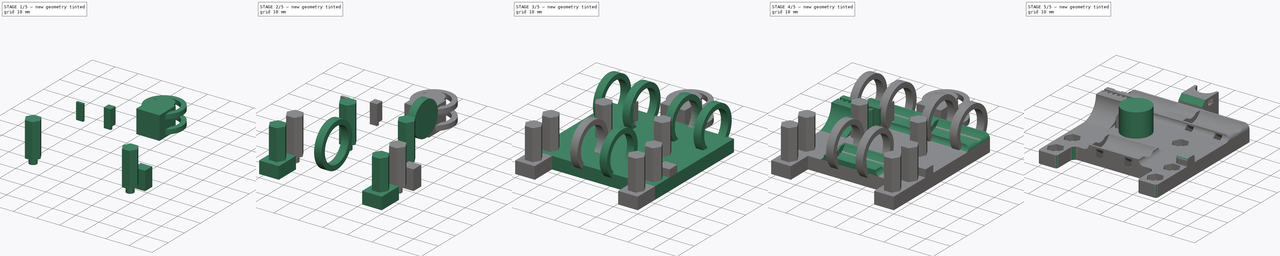
[diagram: build sequence overview — one tinted view per stage of 5, left to right]
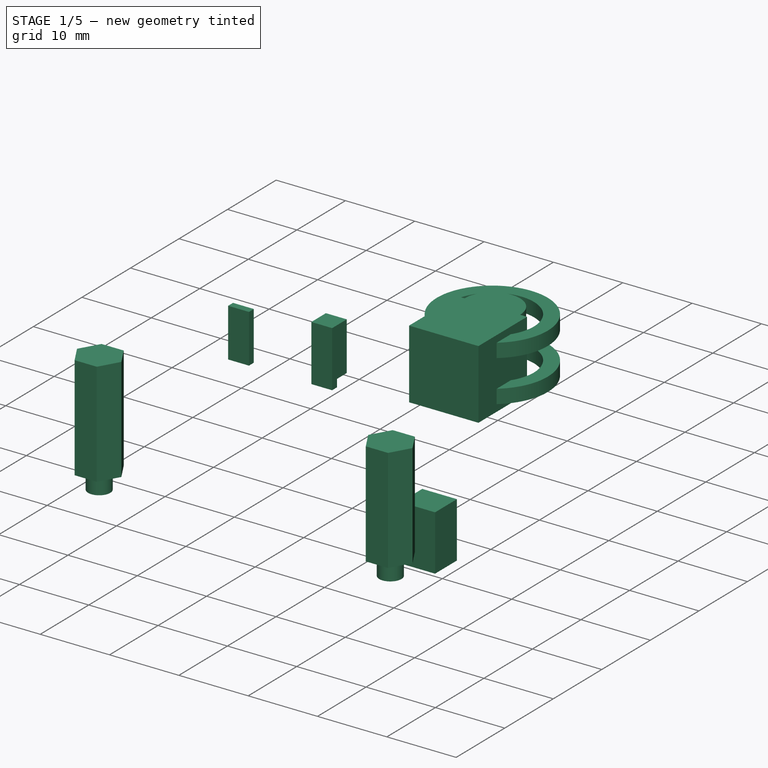
[diagram: stage 1 of 5 — iso view after this stage's code; geometry added in this stage tinted green]
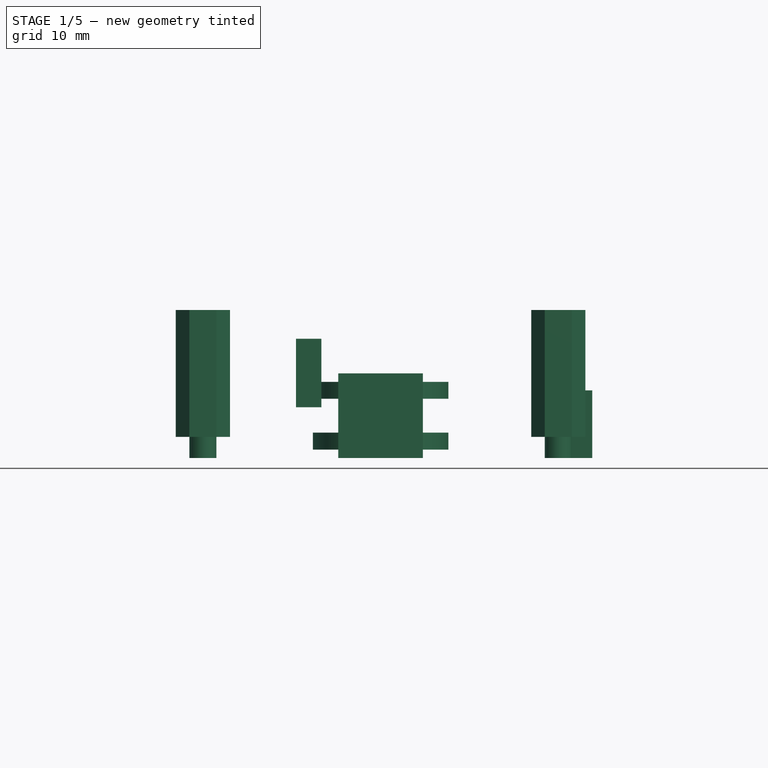
[diagram: stage 1 of 5 — front view after this stage's code; geometry added in this stage tinted green]
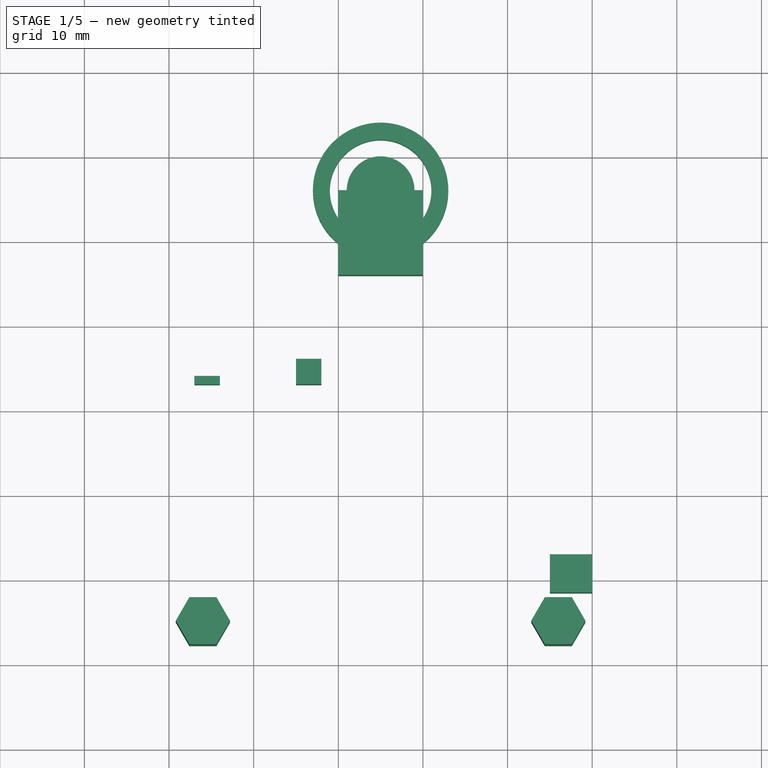
[diagram: stage 1 of 5 — top view after this stage's code; geometry added in this stage tinted green]
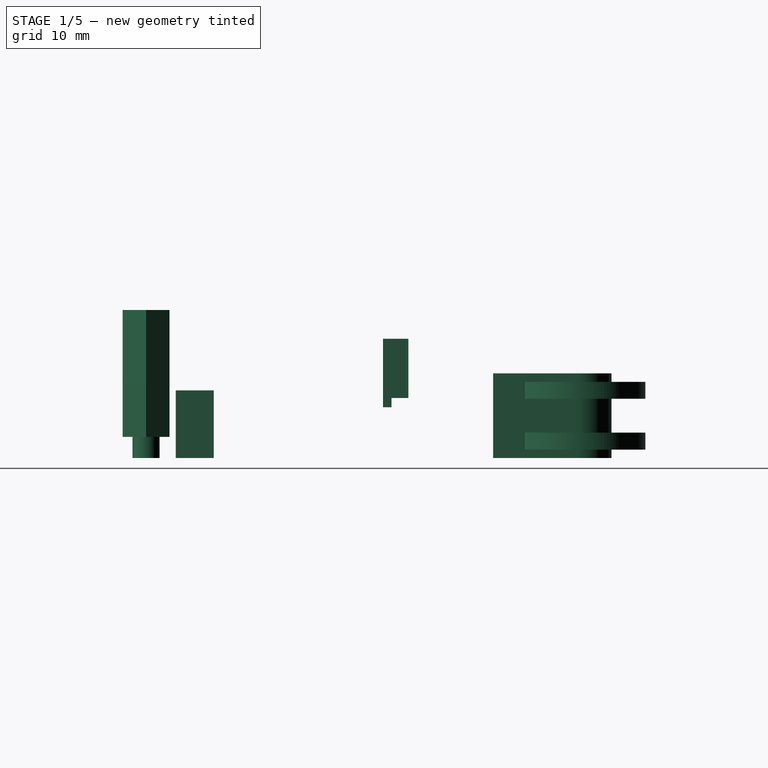
[diagram: stage 1 of 5 — right view after this stage's code; geometry added in this stage tinted green]
FCSTD DOCUMENT  (FreeCAD 0.16R6707 (Git))
Label: CarroX
License: CreativeCommons Attribution-ShareAlike
LicenseURL: http://creativecommons.org/licenses/by-sa/4.0/
objects: Part::Cylinder×27, Part::Cut×17, Part::MultiFuse×11, Part::Box×9, PartDesign::Fillet×6, Part::Prism×6, Sketcher::SketchObject×4, PartDesign::Pad×3, Part::FeaturePython×1, PartDesign::Pocket×1, PartDesign::Chamfer×1
note: 90 computed .brp shape members not serialized (recipe doc carries the construction recipe); baked Part::Feature solids carry a one-line shape summary decoded from their .brp

FEATURE [Part::Cylinder] Cylinder022  label="Cilindro005"
  Angle = 360
  Height = 10
  Placement = pos=(46,5,0) rot=(0,0,1;0rad)
  Radius = 1.6
FEATURE [Part::Cylinder] Cylinder023  label="Cilindro006"
  Angle = 360
  Height = 10
  Placement = pos=(4,5,0) rot=(0,0,1;0rad)
  Radius = 1.6
FEATURE [Part::Prism] Prism004  label="Prisma004"
  Circumradius = 3.2
  Height = 15
  Placement = pos=(46,5,2.5) rot=(0,0,1;0rad)
  Polygon = 6
FEATURE [Part::Prism] Prism005  label="Prisma005"
  Circumradius = 3.2
  Height = 15
  Placement = pos=(4,5,2.5) rot=(0,0,1;0rad)
  Polygon = 6
FEATURE [Part::MultiFuse] Fusion006  label="tornillos002"
  Shapes = -> [Prism005,Prism004,Cylinder023,Cylinder022]
FEATURE [Part::Box] Box004  label="Cubo004"
  Height = 7
  Length = 3
  Placement = pos=(15,33,7.1) rot=(0,0,1;0rad)
  Width = 3
FEATURE [Part::Box] Box005  label="Cubo005"
  Height = 7
  Length = 3
  Placement = pos=(15,33,6) rot=(0,0,1;0rad)
  Width = 1
FEATURE [Part::Box] Box006  label="Cubo006"
  Height = 7
  Length = 3
  Placement = pos=(3,33,6) rot=(0,0,1;0rad)
  Width = 1
FEATURE [Part::Box] Box007  label="Cubo007"
  Height = 10
  Length = 10
  Placement = pos=(20,46,0) rot=(0,0,1;0rad)
  Width = 10
FEATURE [Part::Cylinder] Cylinder024  label="Cilindro007"
  Angle = 360
  Height = 10
  Placement = pos=(25,56,0) rot=(0,0,1;0rad)
  Radius = 4
FEATURE [Part::Cylinder] Cylinder025  label="Cilindro008"
  Angle = 360
  Height = 2
  Placement = pos=(25,56,0) rot=(0,0,1;0rad)
  Radius = 8
FEATURE [Part::Cylinder] Cylinder026  label="Cilindro009"
  Angle = 360
  Height = 2
  Placement = pos=(25,56,0) rot=(0,0,1;0rad)
  Radius = 6
FEATURE [Part::Cut] Cut014  label="brida006"
  Base = -> Cylinder025
  Placement = pos=(0,0,1) rot=(0,0,1;0rad)
  Tool = -> Cylinder026
FEATURE [Part::Cut] Cut015  label="brida007"
  Base = -> Cylinder025
  Placement = pos=(0,0,7) rot=(0,0,1;0rad)
  Tool = -> Cylinder026
FEATURE [Part::MultiFuse] Fusion009  label="cables_cabeza"
  Shapes = -> [Cut015,Cut014,Cylinder024]
FEATURE [Part::Box] Box008  label="taco_endstop"
  Height = 8
  Length = 5
  Placement = pos=(45,8.5,0) rot=(0,0,1;0rad)
  Width = 4.5
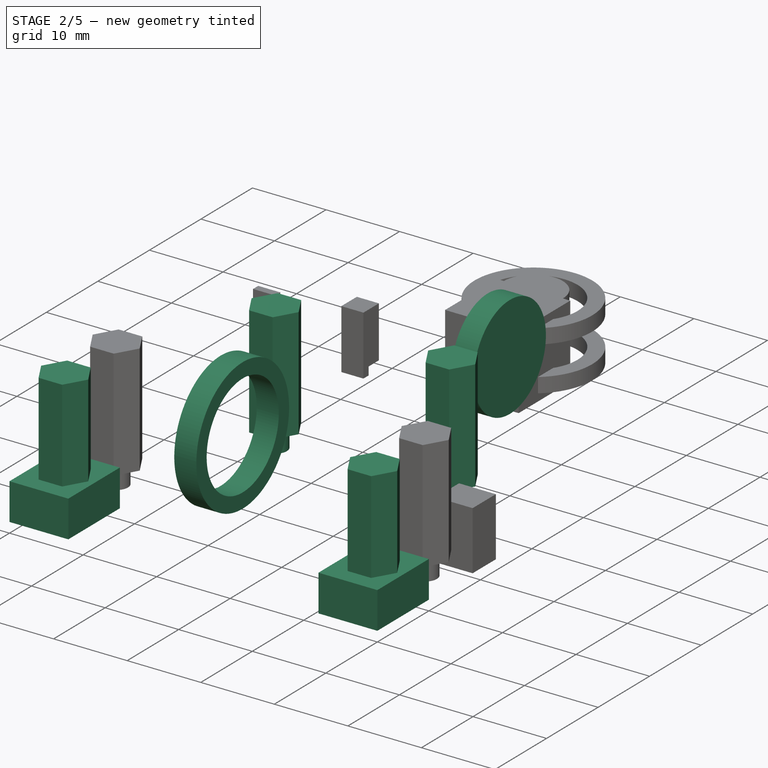
[diagram: stage 2 of 5 — iso view after this stage's code; geometry added in this stage tinted green]
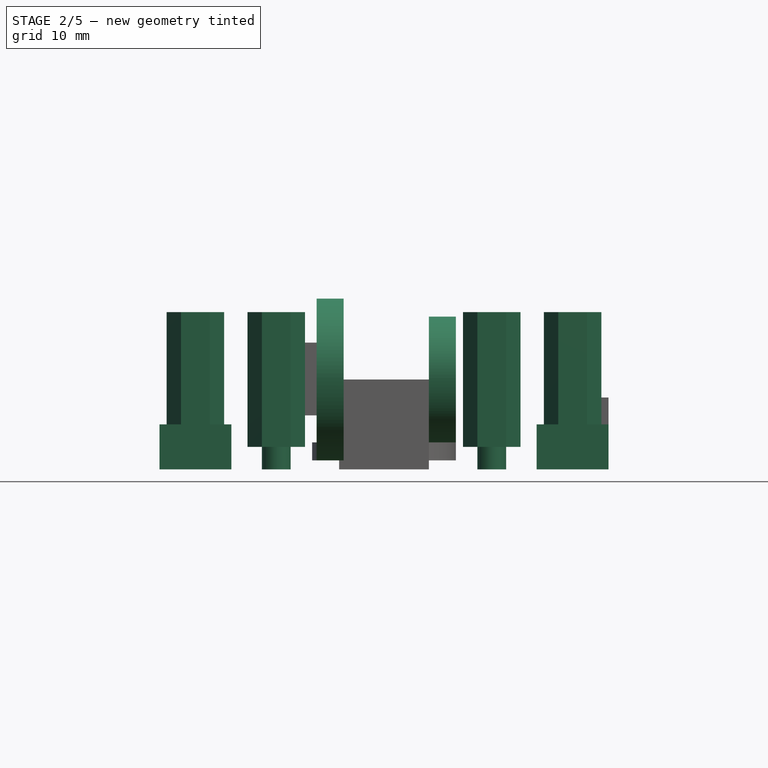
[diagram: stage 2 of 5 — front view after this stage's code; geometry added in this stage tinted green]
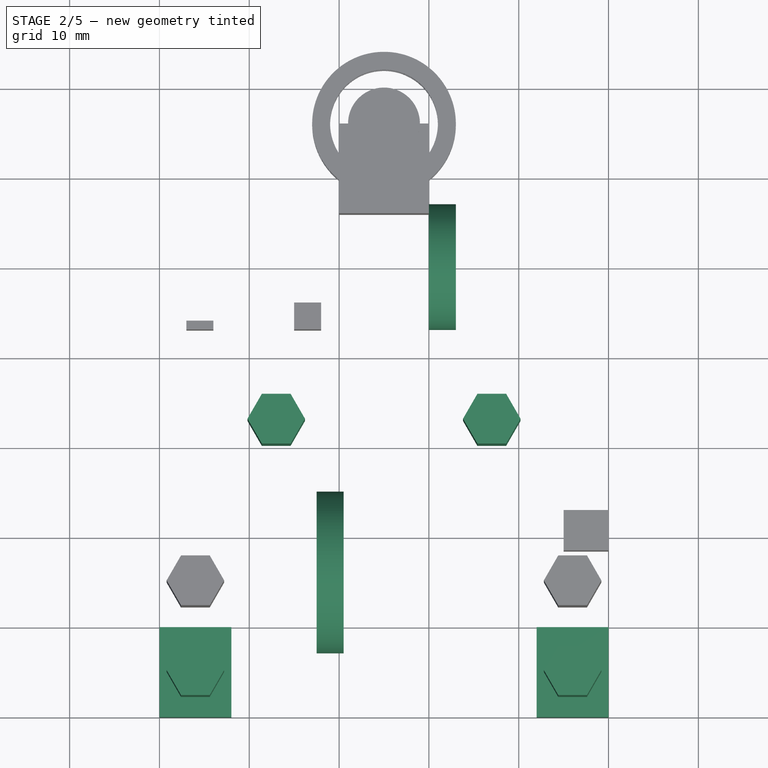
[diagram: stage 2 of 5 — top view after this stage's code; geometry added in this stage tinted green]
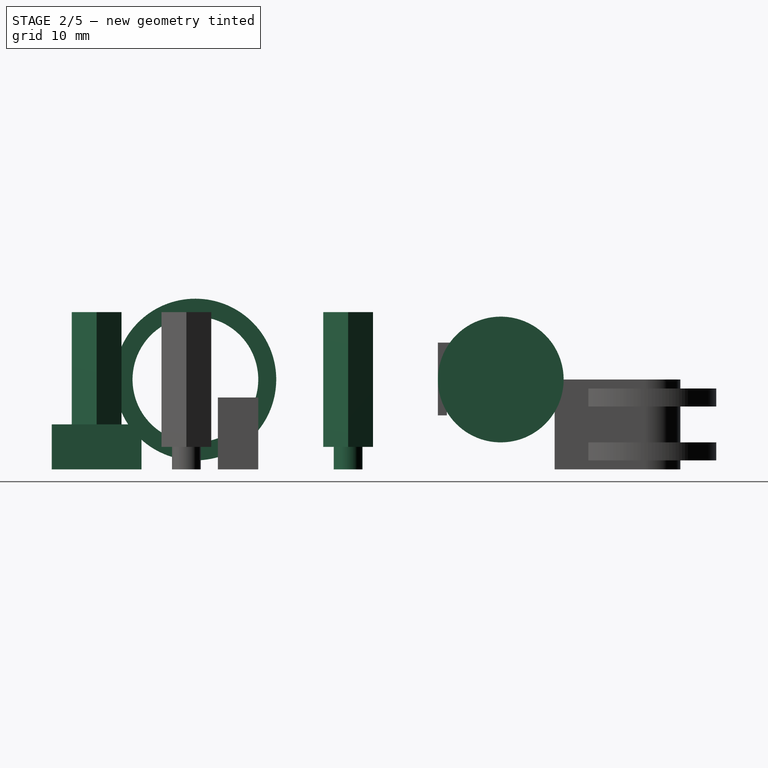
[diagram: stage 2 of 5 — right view after this stage's code; geometry added in this stage tinted green]
FEATURE [Part::Cylinder] Cylinder015  label="resta_brida004"
  Angle = 360
  Height = 3
  Placement = pos=(30,40,10) rot=(0,1,0;1.5708rad)
  Radius = 7
FEATURE [Part::Cylinder] Cylinder016  label="base_brida005"
  Angle = 360
  Height = 3
  Placement = pos=(30,40,10) rot=(0,1,0;1.5708rad)
  Radius = 9
FEATURE [Part::Cylinder] Cylinder017  label="resta_brida005"
  Angle = 360
  Height = 3
  Placement = pos=(30,40,10) rot=(0,1,0;1.5708rad)
  Radius = 7
FEATURE [Part::Cut] Cut007  label="brida005"
  Base = -> Cylinder016
  Placement = pos=(-12.5,-34,0) rot=(0,0,1;0rad)
  Tool = -> Cylinder017
FEATURE [Part::Cylinder] Cylinder018  label="Cilindro001"
  Angle = 360
  Height = 10
  Placement = pos=(13,23,0) rot=(0,0,1;0rad)
  Radius = 1.6
FEATURE [Part::Cylinder] Cylinder019  label="Cilindro002"
  Angle = 360
  Height = 10
  Placement = pos=(37,23,0) rot=(0,0,1;0rad)
  Radius = 1.6
FEATURE [Part::Prism] Prism  label="Prisma"
  Circumradius = 3.2
  Height = 15
  Placement = pos=(13,23,2.5) rot=(0,0,1;0rad)
  Polygon = 6
FEATURE [Part::Prism] Prism001  label="Prisma001"
  Circumradius = 3.2
  Height = 15
  Placement = pos=(37,23,2.5) rot=(0,0,1;0rad)
  Polygon = 6
FEATURE [Part::MultiFuse] Fusion003  label="tornillos"
  Shapes = -> [Prism001,Prism,Cylinder019,Cylinder018]
FEATURE [Part::Box] Box002  label="Cubo002"
  Height = 5
  Length = 8
  Placement = pos=(0,-10,0) rot=(0,0,1;0rad)
  Width = 10
FEATURE [Part::Box] Box003  label="Cubo003"
  Height = 5
  Length = 8
  Placement = pos=(42,-10,0) rot=(0,0,1;0rad)
  Width = 10
FEATURE [Part::Cylinder] Cylinder020  label="Cilindro003"
  Angle = 360
  Height = 10
  Placement = pos=(46,-5,0) rot=(0,0,1;0rad)
  Radius = 1.6
FEATURE [Part::Cylinder] Cylinder021  label="Cilindro004"
  Angle = 360
  Height = 10
  Placement = pos=(4,-5,0) rot=(0,0,1;0rad)
  Radius = 1.6
FEATURE [Part::Prism] Prism002  label="Prisma002"
  Circumradius = 3.2
  Height = 15
  Placement = pos=(46,-5,2.5) rot=(0,0,1;0rad)
  Polygon = 6
FEATURE [Part::Prism] Prism003  label="Prisma003"
  Circumradius = 3.2
  Height = 15
  Placement = pos=(4,-5,2.5) rot=(0,0,1;0rad)
  Polygon = 6
FEATURE [Part::MultiFuse] Fusion005  label="tornillos001"
  Shapes = -> [Prism003,Prism002,Cylinder021,Cylinder020]
FEATURE [Part::MultiFuse] Fusion007  label="tornillos_ventiladores"
  Shapes = -> [Fusion005,Fusion006]
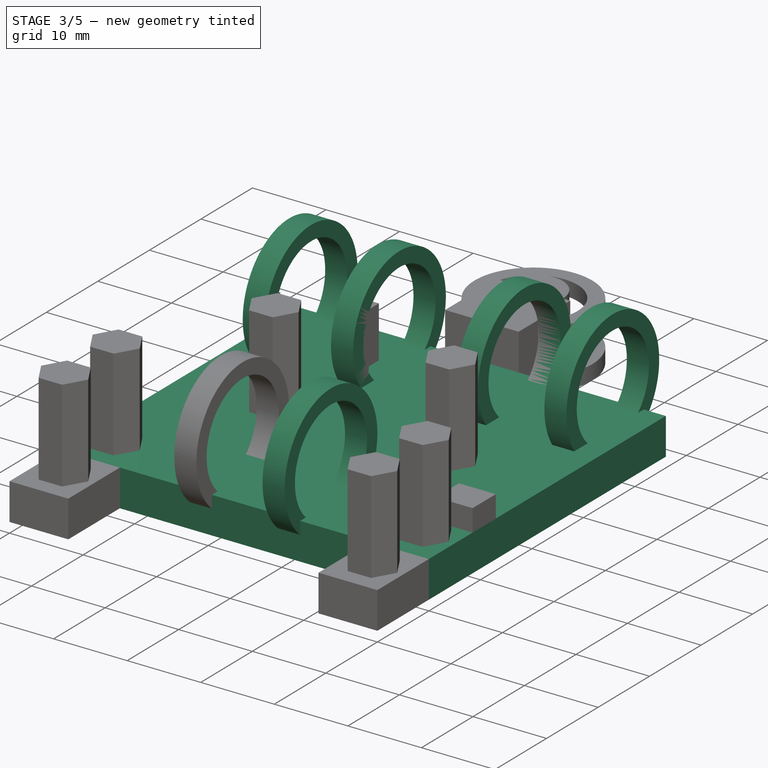
[diagram: stage 3 of 5 — iso view after this stage's code; geometry added in this stage tinted green]
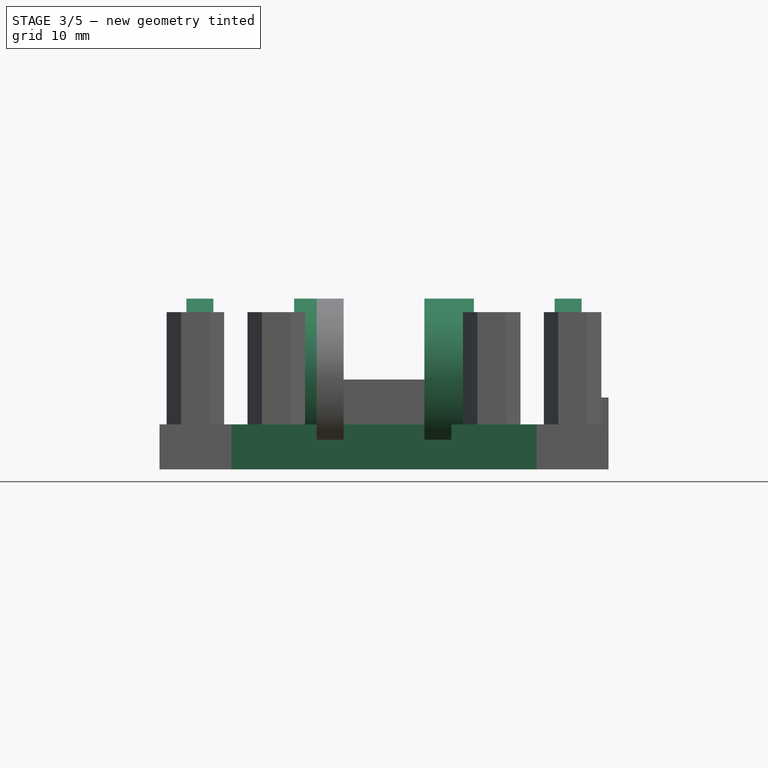
[diagram: stage 3 of 5 — front view after this stage's code; geometry added in this stage tinted green]
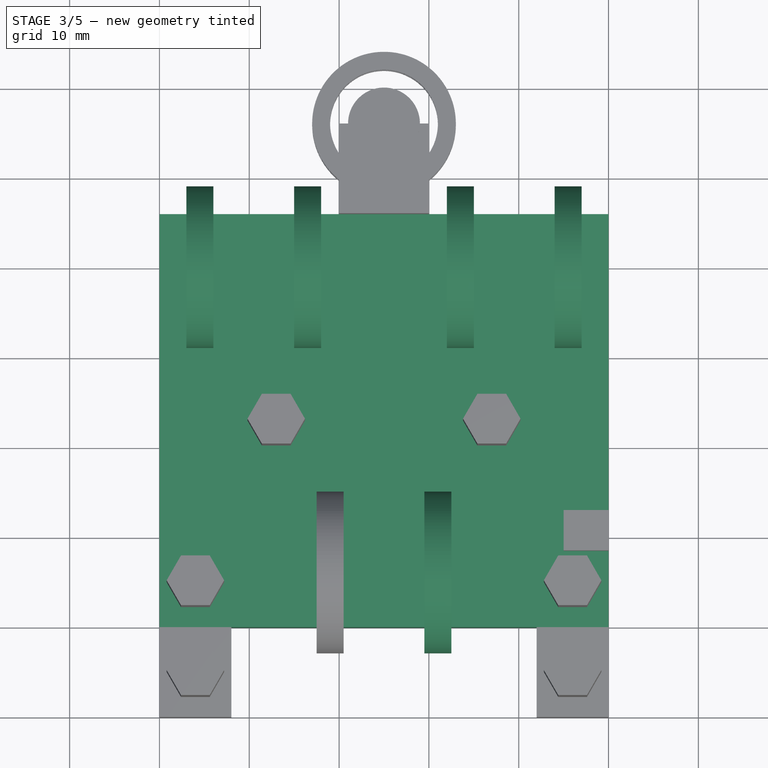
[diagram: stage 3 of 5 — top view after this stage's code; geometry added in this stage tinted green]
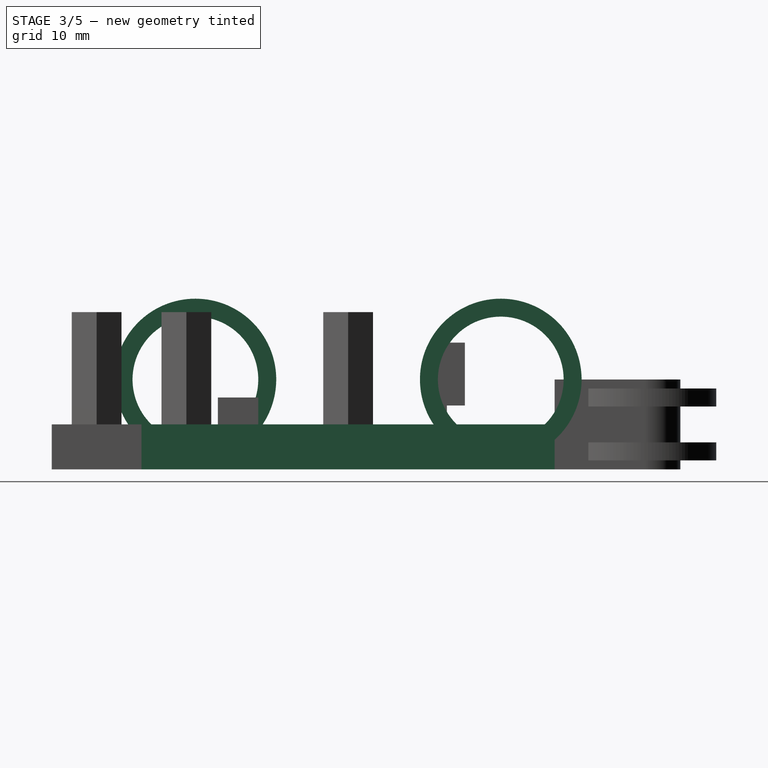
[diagram: stage 3 of 5 — right view after this stage's code; geometry added in this stage tinted green]
FEATURE [Part::Box] Box  label="Cubo"
  Height = 5
  Length = 50
  Width = 46
FEATURE [Part::Cylinder] Cylinder006  label="base_brida"
  Angle = 360
  Height = 3
  Placement = pos=(30,40,10) rot=(0,1,0;1.5708rad)
  Radius = 9
FEATURE [Part::Cylinder] Cylinder007  label="resta_brida"
  Angle = 360
  Height = 3
  Placement = pos=(30,40,10) rot=(0,1,0;1.5708rad)
  Radius = 7
FEATURE [Part::Cut] Cut002  label="brida"
  Base = -> Cylinder006
  Placement = pos=(2,0,0) rot=(0,0,1;0rad)
  Tool = -> Cylinder007
FEATURE [Part::Cylinder] Cylinder008  label="base_brida001"
  Angle = 360
  Height = 3
  Placement = pos=(30,40,10) rot=(0,1,0;1.5708rad)
  Radius = 9
FEATURE [Part::Cylinder] Cylinder009  label="resta_brida001"
  Angle = 360
  Height = 3
  Placement = pos=(30,40,10) rot=(0,1,0;1.5708rad)
  Radius = 7
FEATURE [Part::Cut] Cut003  label="brida001"
  Base = -> Cylinder008
  Placement = pos=(14,0,0) rot=(0,0,1;0rad)
  Tool = -> Cylinder009
FEATURE [Part::Cylinder] Cylinder010  label="base_brida002"
  Angle = 360
  Height = 3
  Placement = pos=(30,40,10) rot=(0,1,0;1.5708rad)
  Radius = 9
FEATURE [Part::Cylinder] Cylinder011  label="resta_brida002"
  Angle = 360
  Height = 3
  Placement = pos=(30,40,10) rot=(0,1,0;1.5708rad)
  Radius = 7
FEATURE [Part::Cut] Cut004  label="brida002"
  Base = -> Cylinder010
  Placement = pos=(-27,0,0) rot=(0,0,1;0rad)
  Tool = -> Cylinder011
FEATURE [Part::Cylinder] Cylinder012  label="base_brida003"
  Angle = 360
  Height = 3
  Placement = pos=(30,40,10) rot=(0,1,0;1.5708rad)
  Radius = 9
FEATURE [Part::Cylinder] Cylinder013  label="resta_brida003"
  Angle = 360
  Height = 3
  Placement = pos=(30,40,10) rot=(0,1,0;1.5708rad)
  Radius = 7
FEATURE [Part::Cut] Cut005  label="brida003"
  Base = -> Cylinder012
  Placement = pos=(-0.5,-34,0) rot=(0,0,1;0rad)
  Tool = -> Cylinder013
FEATURE [Part::Cylinder] Cylinder014  label="base_brida004"
  Angle = 360
  Height = 3
  Placement = pos=(30,40,10) rot=(0,1,0;1.5708rad)
  Radius = 9
FEATURE [Part::Cut] Cut006  label="brida004"
  Base = -> Cylinder014
  Placement = pos=(-15,0,0) rot=(0,0,1;0rad)
  Tool = -> Cylinder015
FEATURE [Part::MultiFuse] Fusion002
  Shapes = -> [Cut007,Cut006,Cut005,Cut004,Cut003,Cut002]
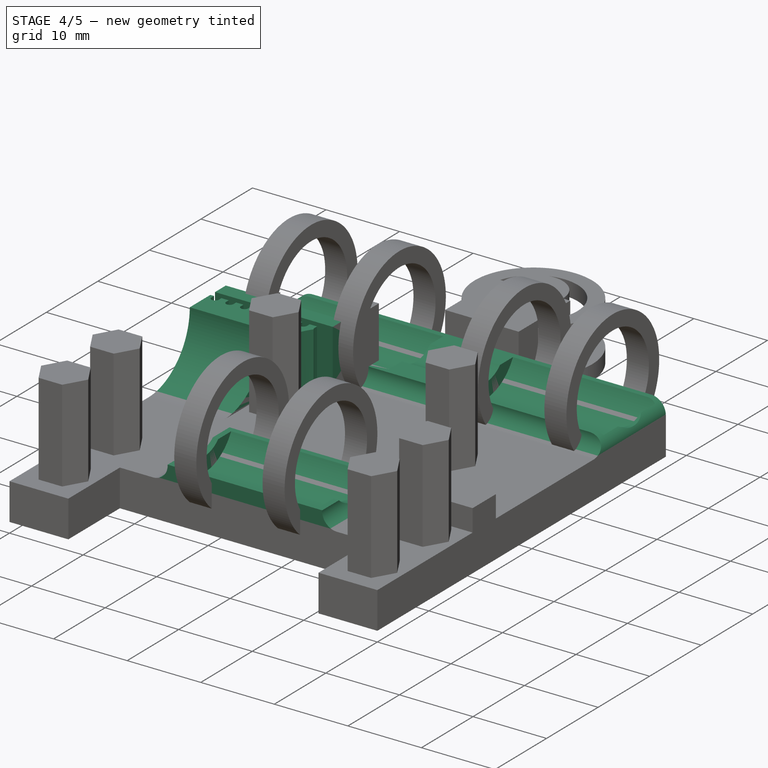
[diagram: stage 4 of 5 — iso view after this stage's code; geometry added in this stage tinted green]
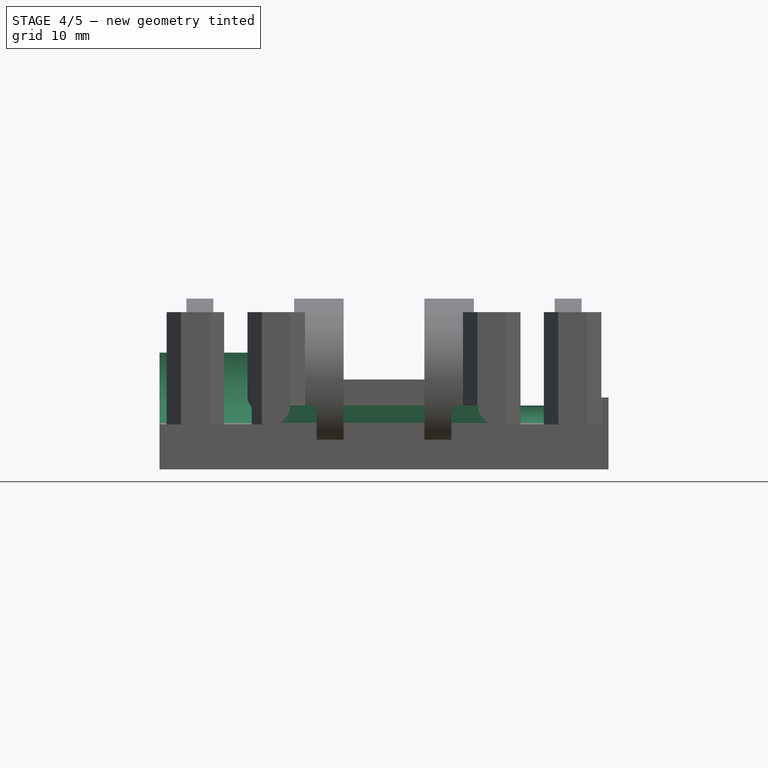
[diagram: stage 4 of 5 — front view after this stage's code; geometry added in this stage tinted green]
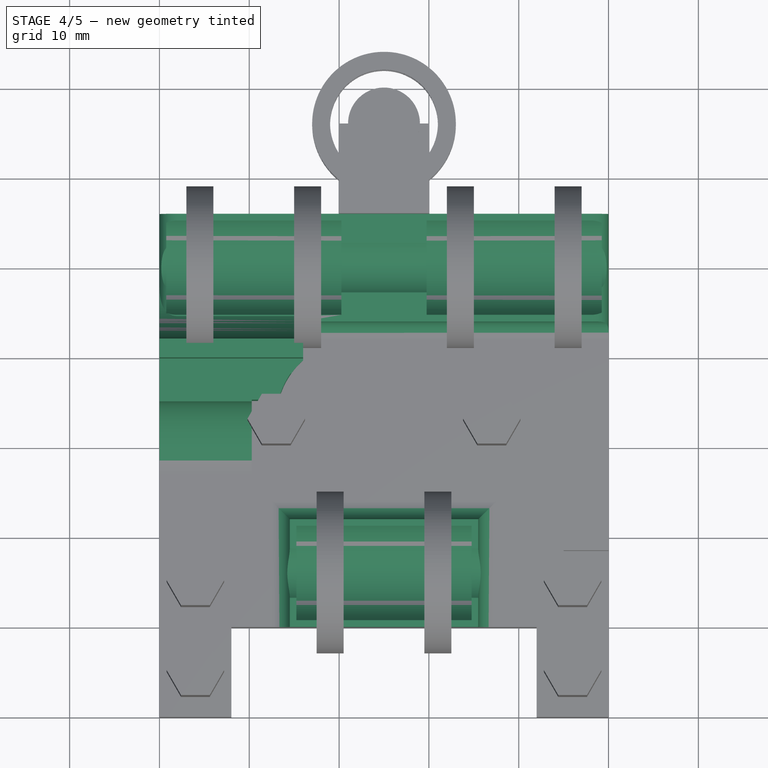
[diagram: stage 4 of 5 — top view after this stage's code; geometry added in this stage tinted green]
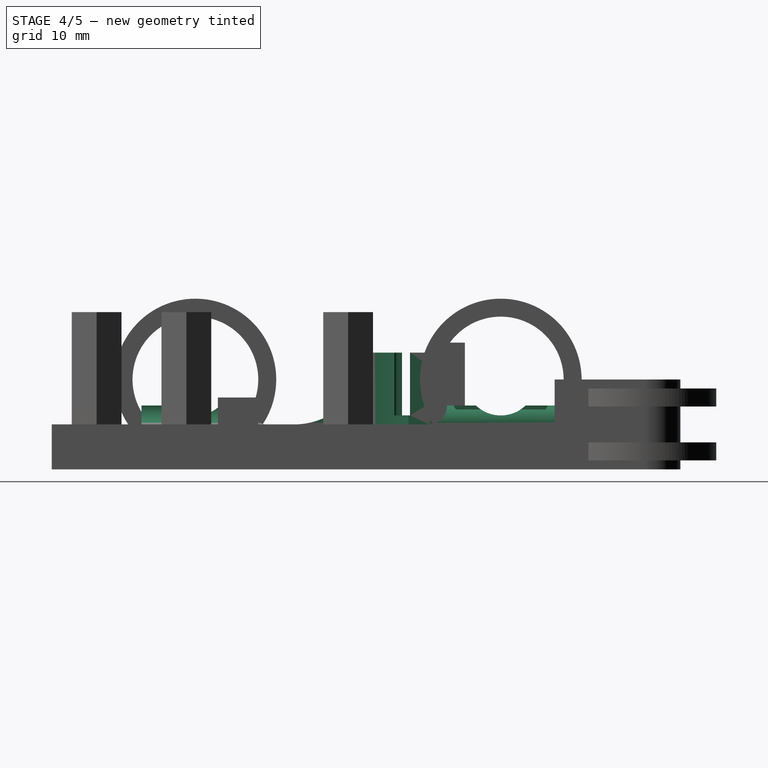
[diagram: stage 4 of 5 — right view after this stage's code; geometry added in this stage tinted green]
FEATURE [Part::Cylinder] Cylinder  label="rodamiento_bajo"
  Angle = 360
  Height = 19.5
  Placement = pos=(15.25,6,10) rot=(0,1,0;1.5708rad)
  Radius = 6
FEATURE [Part::Cylinder] Cylinder001  label="rodamiento_alto1"
  Angle = 360
  Height = 19.5
  Placement = pos=(0.75,40,10) rot=(0,1,0;1.5708rad)
  Radius = 6
FEATURE [Part::Cylinder] Cylinder002  label="rodamiento_alto002"
  Angle = 360
  Height = 19.5
  Placement = pos=(29.75,40,10) rot=(0,1,0;1.5708rad)
  Radius = 6
FEATURE [Sketcher::SketchObject] Sketch
  ExternalGeometry = -> [Box]
  Placement = pos=(0,0,5) rot=(0,0,1;0rad)
  Support = -> Box [Face6]
  sketch-geometry (8):
    g0: LineSegment StartX=0 StartY=46 StartZ=0 EndX=50 EndY=46 EndZ=0
    g1: LineSegment StartX=50 StartY=46 StartZ=0 EndX=50 EndY=34 EndZ=0
    g2: LineSegment StartX=50 StartY=34 StartZ=0 EndX=0 EndY=34 EndZ=0
    g3: LineSegment StartX=0 StartY=34 StartZ=0 EndX=0 EndY=46 EndZ=0
    g4: LineSegment StartX=14.5 StartY=0 StartZ=0 EndX=35.5 EndY=0 EndZ=0
    g5: LineSegment StartX=35.5 StartY=0 StartZ=0 EndX=35.5 EndY=12 EndZ=0
    g6: LineSegment StartX=35.5 StartY=12 StartZ=0 EndX=14.5 EndY=12 EndZ=0
    g7: LineSegment StartX=14.5 StartY=12 StartZ=0 EndX=14.5 EndY=0 EndZ=0
  constraints (23):
    c: Coincident(g0,g1)
    c: Coincident(g1,g2)
    c: Coincident(g2,g3)
    c: Coincident(g3,g0)
    c: Horizontal(g0)
    c: Horizontal(g2)
    c: Vertical(g1)
    c: Vertical(g3)
    c: Coincident(g0,g-3)
    c: Coincident(g0,g-3)
    c: Coincident(g4,g5)
    c: Coincident(g5,g6)
    c: Coincident(g6,g7)
    c: Coincident(g7,g4)
    c: Horizontal(g4)
    c: Horizontal(g6)
    c: Vertical(g5)
    c: Vertical(g7)
    c: PointOnObject(g4,g-1)
    c: DistanceX(g4) = 21
    c: DistanceX(g-1,g4) = 14.5
    c: Equal(g7,g3)
    c: DistanceY(g7) = -12
FEATURE [PartDesign::Pad] Pad
  Length = 2.1
  Length2 = 100
  Sketch = -> Sketch
  Type = 0
FEATURE [PartDesign::Fillet] Fillet
  Base = -> Pad [Edge5,Edge2,Edge7,Edge6]
  Radius = 2
FEATURE [Part::Cylinder] Cylinder003  label="barra_baja"
  Angle = 360
  Height = 70
  Placement = pos=(-10,6,10) rot=(0,1,0;1.5708rad)
  Radius = 4
FEATURE [Part::Cylinder] Cylinder004  label="barra_baja001"
  Angle = 360
  Height = 70
  Placement = pos=(-10,40,10) rot=(0,1,0;1.5708rad)
  Radius = 4
FEATURE [PartDesign::Fillet] Fillet001
  Base = -> Fillet [Edge26,Edge13]
  Radius = 2
FEATURE [Part::MultiFuse] Fusion  label="barras&rodamientos"
  Shapes = -> [Cylinder004,Cylinder003,Cylinder002,Cylinder001,Cylinder]
FEATURE [Sketcher::SketchObject] Sketch001
  ExternalGeometry = -> [Fillet001]
  Placement = pos=(0,0,0) rot=(0.57735,-0.57735,-0.57735;2.0944rad)
  Support = -> Fillet001 [Face1]
  sketch-geometry (4):
    g0: ArcOfCircle CenterX=-17 CenterY=13 CenterZ=0 NormalX=0 NormalY=0 NormalZ=1 Radius=8 StartAngle=3.14159 EndAngle=4.71239
    g1: ArcOfCircle CenterX=-40 CenterY=13 CenterZ=0 NormalX=0 NormalY=0 NormalZ=1 Radius=8 StartAngle=4.71239 EndAngle=6.28319
    g2: LineSegment StartX=-32 StartY=13 StartZ=0 EndX=-25 EndY=13 EndZ=0
    g3: LineSegment StartX=-40 StartY=5 StartZ=0 EndX=-17 EndY=5 EndZ=0
  constraints (14):
    c: PointOnObject(g0,g-3)
    c: PointOnObject(g1,g-3)
    c: Tangent(g1,g-3) = 1.5708
    c: Tangent(g0,g-3)
    c: Coincident(g2,g1)
    c: Horizontal(g2)
    c: Coincident(g0,g2)
    c: DistanceY(g-3,g1) = 8
    c: Perpendicular(g0,g2)
    c: Perpendicular(g1,g2)
    c: DistanceX(g-1,g1) = -40
    c: DistanceX(g0,g-3) = 25
    c: Coincident(g3,g1)
    c: Coincident(g3,g0)
FEATURE [PartDesign::Pad] Pad001
  Length = 16
  Length2 = 100
  Reversed = true
  Sketch = -> Sketch001
  Type = 0
FEATURE [Sketcher::SketchObject] Sketch002
  Placement = pos=(0,0,6) rot=(0,0,1;0rad)
  sketch-geometry (4):
    g0: LineSegment StartX=2.9e-11 StartY=29 StartZ=0 EndX=2.9e-11 EndY=28.5 EndZ=0
    g1: LineSegment StartX=1 StartY=29 StartZ=0 EndX=1 EndY=28.5 EndZ=0
    g2: LineSegment StartX=2.9e-11 StartY=29 StartZ=0 EndX=1 EndY=29 EndZ=0
    g3: ArcOfCircle CenterX=0.5 CenterY=28.5 CenterZ=0 NormalX=0 NormalY=0 NormalZ=1 Radius=0.5 StartAngle=3.14158 EndAngle=6.2832
  constraints (13):
    c: Vertical(g0)
    c: Vertical(g1)
    c: Coincident(g2,g0)
    c: Coincident(g2,g1)
    c: Horizontal(g2)
    c: Coincident(g3,g0)
    c: Coincident(g3,g1)
    c: Equal(g0,g1)
    c: Radius(g3) = 0.5
    c: DistanceY(g0) = -0.5
    c: DistanceX(g2) = 1
    c: DistanceY(g-1,g0) = 29
    c: PointOnObject(g0,g-2)
FEATURE [PartDesign::Pad] Pad002
  Length = 10
  Length2 = 100
  Placement = pos=(0,0,6) rot=(0,0,1;0rad)
  Sketch = -> Sketch002
  Type = 0
FEATURE [Part::FeaturePython] Array  # Draft array (typed FeaturePython)
  Angle = 360
  ArrayType = 0
  Axis = (0,0,1)
  Base = -> Pad002
  Center = (0,0,0)
  Fuse = false
  IntervalAxis = (0,0,0)
  IntervalX = (2,0,0)
  IntervalY = (0,1,0)
  IntervalZ = (0,0,0)
  NumberPolar = 1
  NumberX = 8
  NumberY = 1
  NumberZ = 1
  Placement = pos=(0.5,0,0) rot=(0,0,1;0rad)
FEATURE [Part::Box] Box001  label="Cubo001"
  Height = 10
  Length = 20
  Placement = pos=(-1,29,6) rot=(0,0,1;0rad)
  Width = 0.9
FEATURE [Part::MultiFuse] Fusion001  label="correa"
  Shapes = -> [Array,Box001]
FEATURE [Part::Cut] Cut
  Base = -> Pad001
  Tool = -> Fusion
FEATURE [Part::Cut] Cut001
  Base = -> Cut
  Tool = -> Fusion001
FEATURE [Sketcher::SketchObject] Sketch003
  Placement = pos=(0,0,13) rot=(0,0,1;0rad)
  Support = -> Cut001 [Face6]
  sketch-geometry (5):
    g0: ArcOfCircle CenterX=22 CenterY=23 CenterZ=0 NormalX=0 NormalY=0 NormalZ=1 Radius=9 StartAngle=1.99803 EndAngle=2.89567
    g1: LineSegment StartX=10.2708 StartY=16.191 StartZ=0 EndX=18.2708 EndY=16.191 EndZ=0
    g2: LineSegment StartX=18.2708 StartY=16.191 StartZ=0 EndX=18.2708 EndY=31.191 EndZ=0
    g3: LineSegment StartX=10.2708 StartY=16.191 StartZ=0 EndX=10.2708 EndY=25.191 EndZ=0
    g4: LineSegment StartX=13.2708 StartY=25.191 StartZ=0 EndX=10.2708 EndY=25.191 EndZ=0
  constraints (16):
    c: Horizontal(g1)
    c: Coincident(g1,g2)
    c: Coincident(g2,g0)
    c: Vertical(g2)
    c: Radius(g0) = 9
    c: DistanceX(g-1,g0) = 22
    c: DistanceY(g-1,g0) = 23
    c: DistanceX(g1) = 8
    c: Coincident(g3,g1)
    c: Vertical(g3)
    c: Coincident(g4,g0)
    c: Coincident(g4,g3)
    c: Horizontal(g4)
    c: DistanceX(g4) = -3
    c: DistanceY(g3) = 9
    c: DistanceY(g2) = 15
FEATURE [PartDesign::Pocket] Pocket
  Length = 8
  Sketch = -> Sketch003
  Type = 0
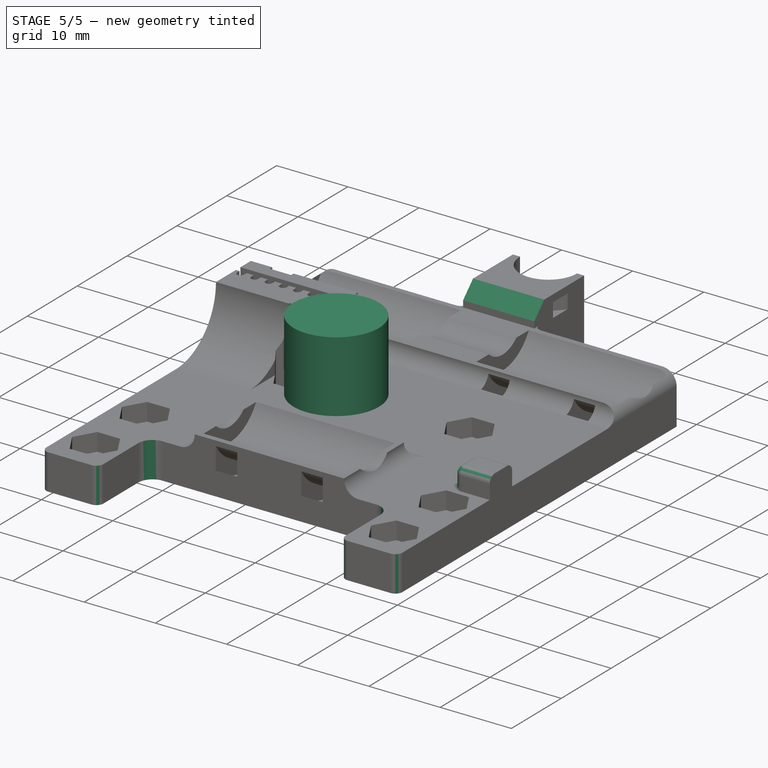
[diagram: stage 5 of 5 — iso view after this stage's code; geometry added in this stage tinted green]
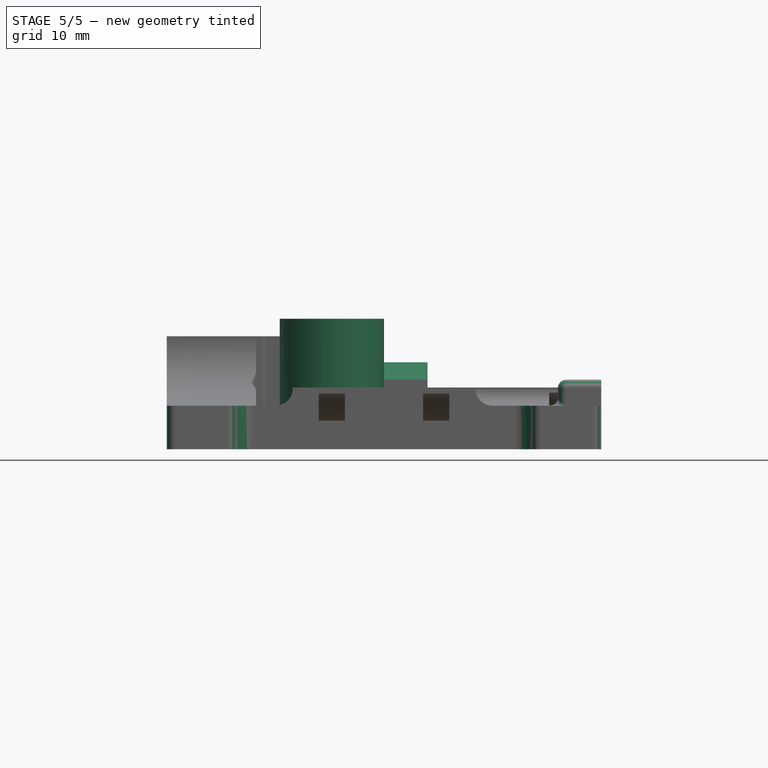
[diagram: stage 5 of 5 — front view after this stage's code; geometry added in this stage tinted green]
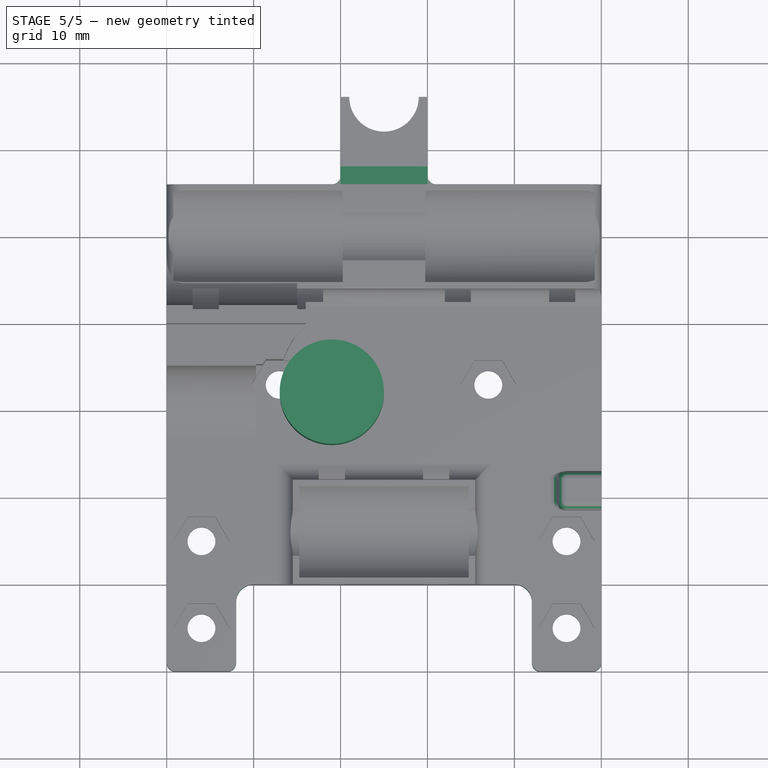
[diagram: stage 5 of 5 — top view after this stage's code; geometry added in this stage tinted green]
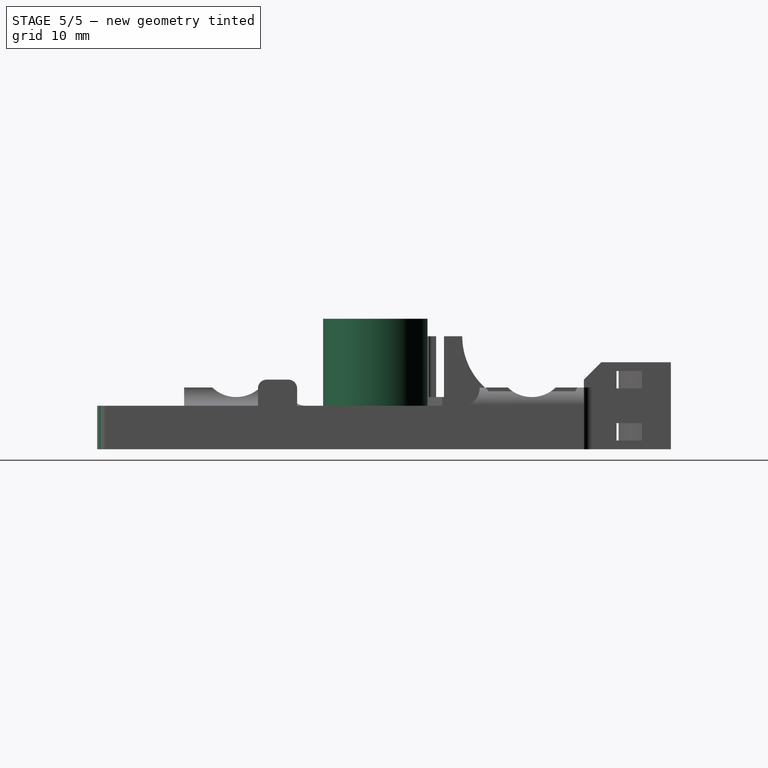
[diagram: stage 5 of 5 — right view after this stage's code; geometry added in this stage tinted green]
FEATURE [Part::Cylinder] Cylinder005  label="Cilindro"
  Angle = 360
  Height = 10
  Placement = pos=(19,22,5) rot=(0,0,1;0rad)
  Radius = 6
FEATURE [Part::Cut] Cut008
  Base = -> Pocket
  Tool = -> Fusion002
FEATURE [Part::Cut] Cut009
  Base = -> Cut008
  Tool = -> Fusion003
FEATURE [Part::MultiFuse] Fusion004
  Shapes = -> [Cut009,Box002,Box003]
FEATURE [Part::Cut] Cut010
  Base = -> Fusion004
  Tool = -> Fusion007
FEATURE [Part::Cut] Cut011
  Base = -> Cut010
  Tool = -> Box004
FEATURE [Part::Cut] Cut012
  Base = -> Cut011
  Tool = -> Box005
FEATURE [Part::Cut] Cut013
  Base = -> Cut012
  Tool = -> Box006
FEATURE [Part::MultiFuse] Fusion008
  Shapes = -> [Cut013,Box007]
FEATURE [PartDesign::Fillet] Fillet002
  Base = -> Fusion008 [Edge114,Edge120]
  Radius = 1
FEATURE [Part::Cut] Cut016
  Base = -> Fillet002
  Tool = -> Fusion009
FEATURE [PartDesign::Chamfer] Chamfer
  Base = -> Cut016 [Edge56]
  Size = 2
FEATURE [PartDesign::Fillet] Fillet003
  Base = -> Chamfer [Edge107,Edge100]
  Radius = 2
FEATURE [PartDesign::Fillet] Fillet004
  Base = -> Fillet003 [Edge72,Edge59,Edge29,Edge32]
  Radius = 1
FEATURE [Part::MultiFuse] Fusion010
  Shapes = -> [Fillet004,Box008]
FEATURE [PartDesign::Fillet] Fillet005
  Base = -> Fusion010 [Edge5,Edge6,Edge1,Edge7,Edge4,Edge2]
  Radius = 1
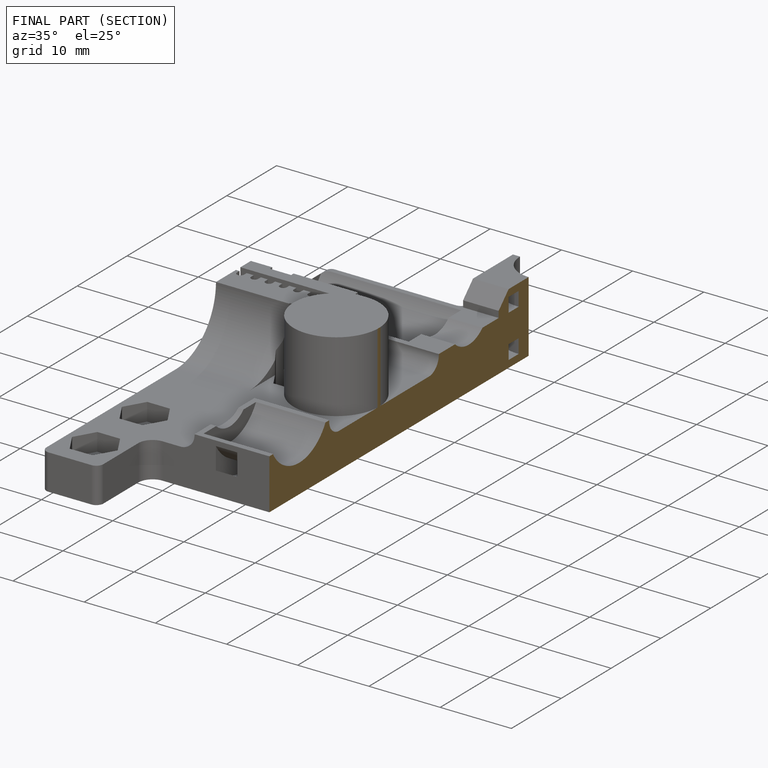
[diagram: finished part — half-section view (interior)]
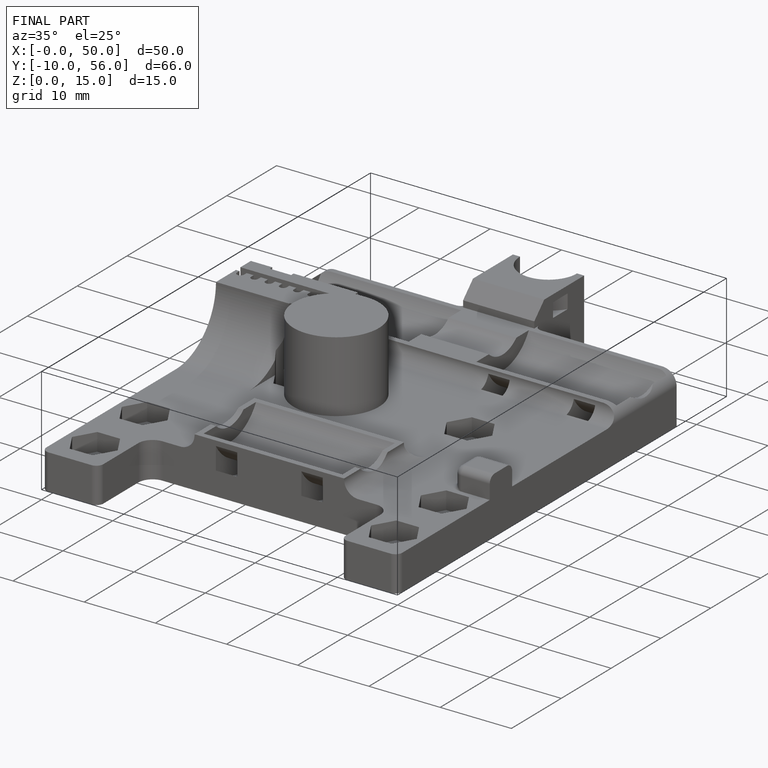
[diagram: finished part — iso view with bounding-box wireframe]
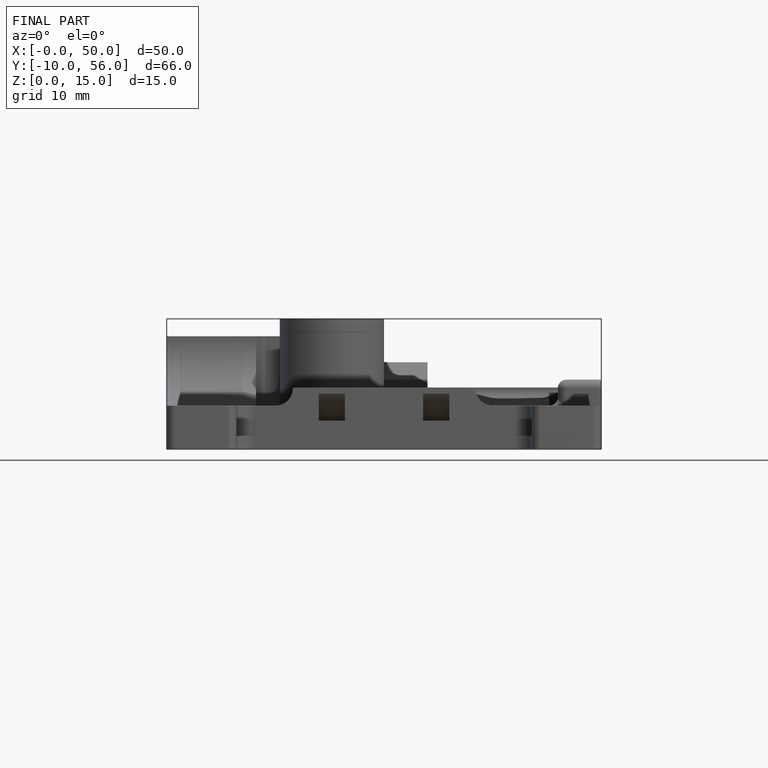
[diagram: finished part — front view with bounding-box wireframe]
